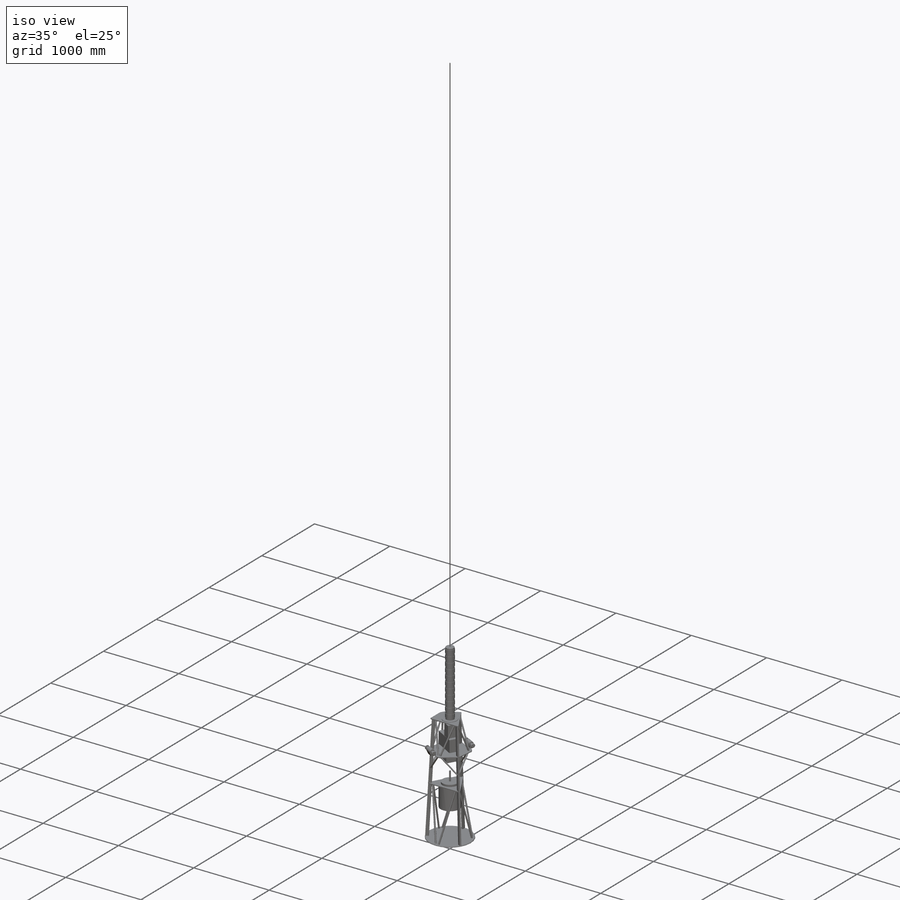
[diagram: iso view]
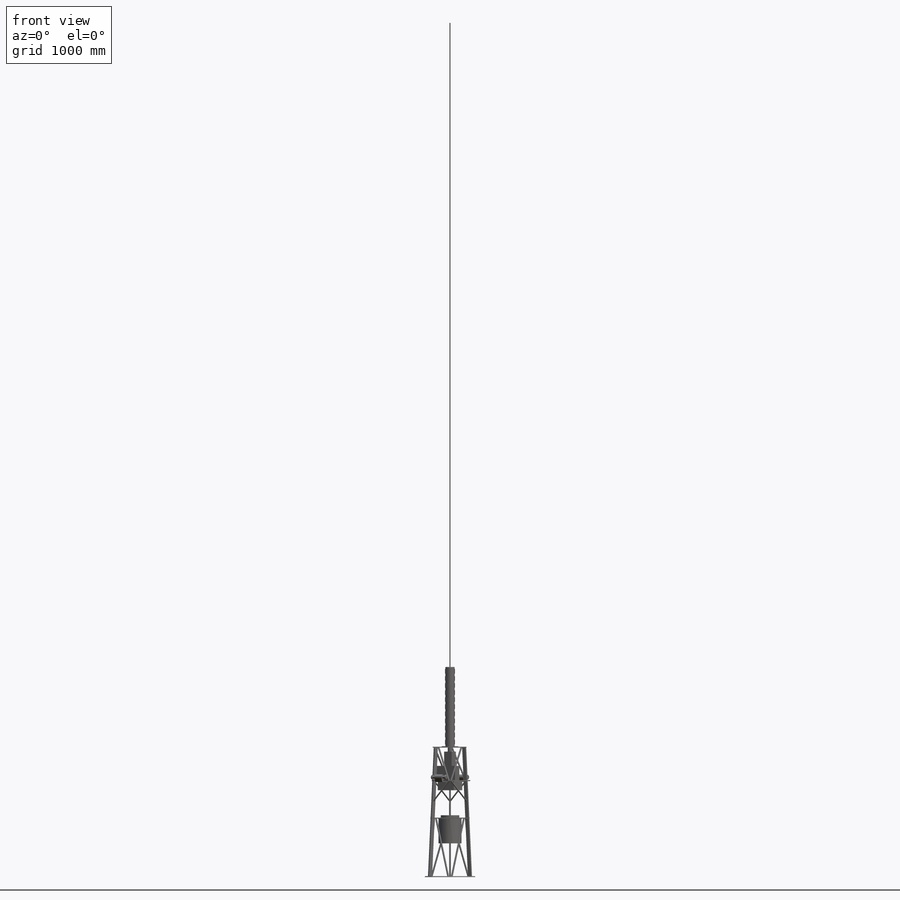
[diagram: front view]
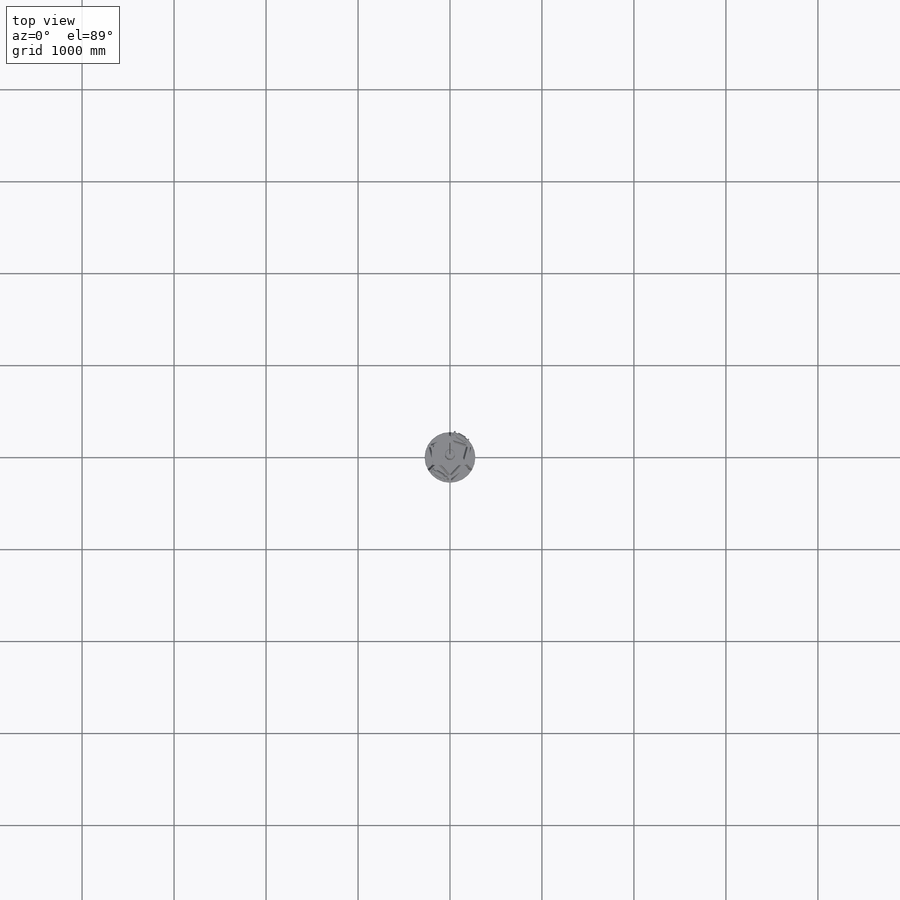
[diagram: top view]
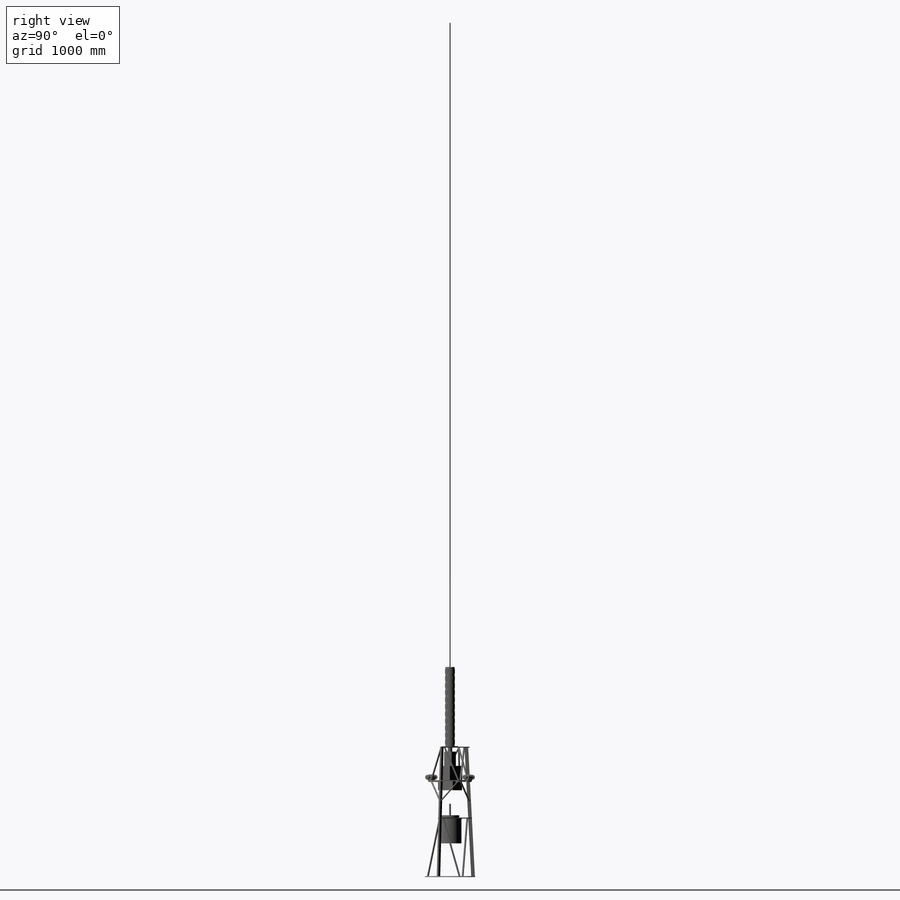
[diagram: right view]
SOLIDWORKS PART (.sldprt)
format: sldprt  version: not decoded by parser v0  size: 1,318,912 bytes
history: native  units: mm
features: sketch x40, extrude x23, plane x7, mirror x7, sweep x6, pattern_circular x3, chamfer x2, material x1, pattern_linear x1 (+12 scaffold rows collapsed)
feature tree (102):
  scaffold x12  (default folders/planes/origin — collapsed)
  material  "Material <not specified>"
  sketch  "Sketch1"  dims[D1=550.0mm]
  extrude  "Boss-Extrude1"  Depth=10mm
  plane  "Plane1"  Offset=1397mm
  sketch  "Sketch2"  dims[D1=400.0mm D2=22.0mm D3=3.0]
  sketch  "Sketch3"  dims[c1.D1=30.0mm c1.D2=16.0mm c2.D1=20.0mm c2.D2=40.0mm]
  sketch  "3DSketch1"
  sweep  "Sweep1"
  plane  "Plane2"  Offset=626.8212mm
  plane  "Plane3"  Offset=1033.3228mm
  pattern_circular  "CirPattern1"  Count=3 Angle=360deg
  sketch  "Sketch4"  dims[D1=480.0mm]
  extrude  "Boss-Extrude2"  Depth=10mm
  sketch  "Sketch5"  dims[c1.D2=5.0mm c1.D1=25.0mm c2.D2=25.0mm c2.D1=21.0mm]
  extrude  "Boss-Extrude3"  Depth=10mm
  sketch  "Sketch6"  dims[D1=260.0mm]
  extrude  "Boss-Extrude5"  Depth=5mm
  sketch  "Sketch8"  dims[D1=250.0mm]
  extrude  "Boss-Extrude6"  Depth=265mm
  sketch  "Sketch9"  dims[D1=200.0mm]
  extrude  "Boss-Extrude7"  Depth=25mm
  sketch  "Sketch10"  dims[D1=20.0mm]
  extrude  "Boss-Extrude8"  Depth=80mm
  sketch  "Sketch11"  dims[D1=1.0mm]
  extrude  "Boss-Extrude9"  Depth=5mm
  sketch  "Sketch12"  dims[D1=1.0mm]
  extrude  "Boss-Extrude10"  Depth=40mm
  sketch  "Sketch13"  dims[D1=10.0mm D2=10.0mm]
  extrude  "Boss-Extrude11"  Depth=10mm
  sketch  "Sketch14"  dims[D4=20.0mm D2=30.0mm D3=40.0mm D1=6.0]
  sketch  "Sketch15"  dims[D1=20.0mm]
  sketch  "3DSketch2"
  sweep  "Sweep2"
  mirror  "Mirror1"
  pattern_circular  "CirPattern2"  Count=3 Angle=360deg
  plane  "Plane4"  Offset=813.3228mm
  sketch  "Sketch16"
  sketch  "Sketch17"  dims[D2=20.0mm D1=10.0mm]
  sketch  "3DSketch3"
  sweep  "Sweep3"
  mirror  "Mirror2"
  pattern_circular  "CirPattern3"  Count=3 Angle=360deg
  sketch  "Sketch18"  dims[D1=20.0mm D2=10.0mm]
  sketch  "Sketch19"  dims[D1=10.0mm]
  sketch  "3DSketch4"
  sweep  "Sweep4"
  sketch  "Sketch20"  dims[D1=~10.51264mm]
  sketch  "3DSketch5"
  sweep  "Sweep5"
  plane  "Plane5"
  mirror  "Mirror3"
  sketch  "Sketch22"
  sketch  "Sketch23"  dims[D1=20.0mm]
  sketch  "3DSketch6"
  sweep  "Sweep6"
  mirror  "Mirror4"
  mirror  "Mirror5"
  sketch  "Sketch24"
  extrude  "Boss-Extrude12"  Depth=100mm
  sketch  "Sketch25"
  extrude  "Boss-Extrude13"  Depth=10mm
  sketch  "Sketch26"  dims[D1=60.0mm]
  extrude  "Boss-Extrude14"  [1 undecoded]
  sketch  "Sketch27"
  extrude  "Boss-Extrude15"  Depth=2mm
  sketch  "Sketch28"  dims[D1=30.0mm]
  extrude  "Boss-Extrude16"  Depth=32mm
  sketch  "Sketch29"
  extrude  "Boss-Extrude17"  Depth=15mm
  chamfer  "Chamfer1"  Distance=5mm Angle=45deg
  plane  "Plane6"
  mirror  "Mirror6"
  mirror  "Mirror7"
  sketch  "Sketch30"
  extrude  "Boss-Extrude18"  Depth=155mm
  sketch  "Sketch31"
  extrude  "Boss-Extrude19"  Depth=155mm
  sketch  "Sketch32"  dims[D1=50.0mm]
  extrude  "Boss-Extrude20"  [1 undecoded]
  sketch  "Sketch33"  dims[D1=180.0mm]
  extrude  "Boss-Extrude21"  Depth=5mm
  sketch  "Sketch34"  dims[D1=100.0mm]
  extrude  "Boss-Extrude22"  Depth=863.6mm
  chamfer  "Chamfer2"  Distance=5mm Angle=45deg
  plane  "Plane7"  Offset=20mm
  sketch  "Sketch35"  dims[D1=6.0]
  extrude  "Boss-Extrude23"  Depth=50mm
  pattern_linear  "LPattern1"  Count1=11 Count2=1 Spacing1=77mm Spacing2=10mm
  sketch  "Sketch36"  dims[D1=10.0mm]
  extrude  "Boss-Extrude24"  Depth=7000mm
decode coverage: 53 of 82 modeling features carry decoded parameters
note: ~ marks probable driven/reference dimensions
note: 2 parameter values undecoded
summary: profile_refs inferred from adjacent sketches, not decoded
note: suppression state not decoded; provenance and decode notes live in map.json
